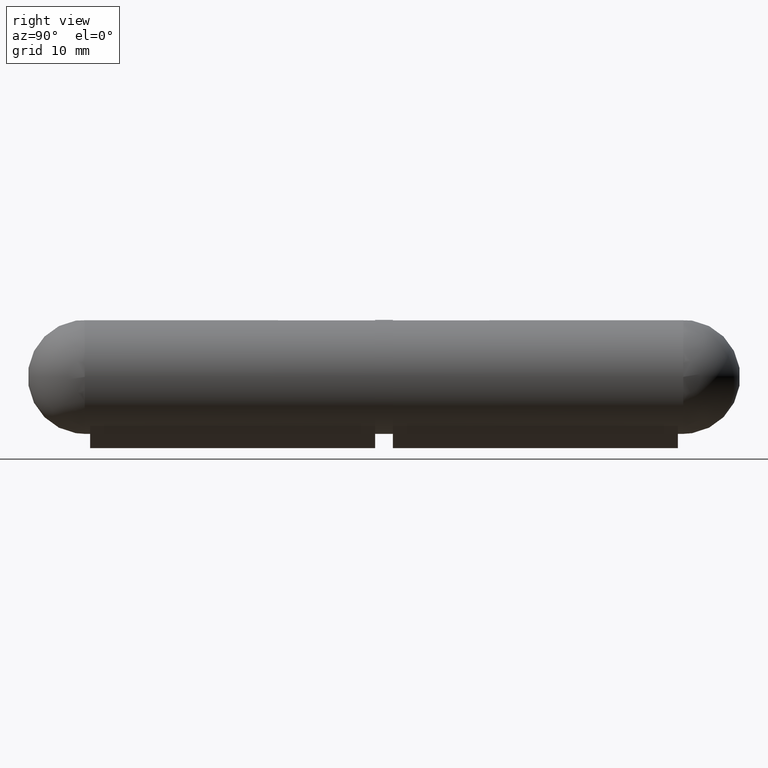
[diagram: clean part render]
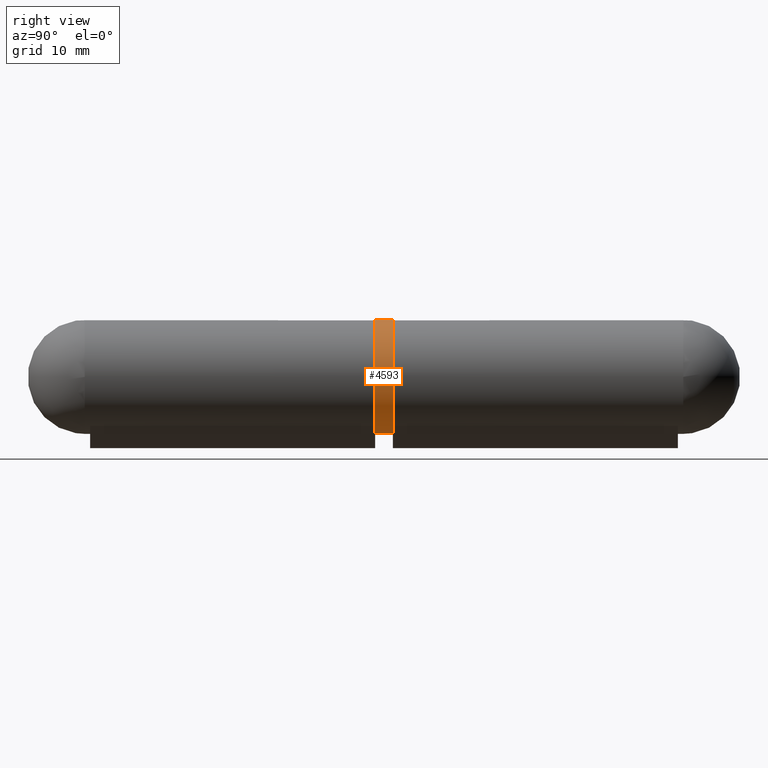
[diagram: same view with one face highlighted and labeled with its STEP entity id]
A machine part, right view. The second image highlights one B-rep face of the part: STEP entity #4593.
In plain terms, the highlighted cylindrical surface (bore or boss wall) has radius 8 mm, axis along (-0, -1, -0).
Its self-contained STEP definition (entity closure, byte-faithful):
#89 = AXIS2_PLACEMENT_3D ( 'NONE', #10456, #9517, #10412 ) ;
#658 = DIRECTION ( 'NONE',  ( 0.000000000000000000, 0.000000000000000000, -1.000000000000000000 ) ) ;
#1667 = ORIENTED_EDGE ( 'NONE', *, *, #4152, .T. ) ;
#1922 = VERTEX_POINT ( 'NONE', #2487 ) ;
#2487 = CARTESIAN_POINT ( 'NONE',  ( 0.000000000000000000, 2.500000000000000000, 8.000000000000000000 ) ) ;
#2810 = CARTESIAN_POINT ( 'NONE',  ( 0.000000000000000000, 0.000000000000000000, 0.000000000000000000 ) ) ;
#2877 = FACE_OUTER_BOUND ( 'NONE', #6918, .T. ) ;
#3813 = DIRECTION ( 'NONE',  ( 0.000000000000000000, 1.000000000000000000, 0.000000000000000000 ) ) ;
#4152 = EDGE_CURVE ( 'NONE', #8559, #8559, #10614, .T. ) ;
#4593 = ADVANCED_FACE ( 'NONE', ( #2877, #8727 ), #10601, .T. ) ;
#5330 = AXIS2_PLACEMENT_3D ( 'NONE', #2810, #3813, #6682 ) ;
#5456 = AXIS2_PLACEMENT_3D ( 'NONE', #12448, #5520, #658 ) ;
#5520 = DIRECTION ( 'NONE',  ( -0.000000000000000000, -1.000000000000000000, -0.000000000000000000 ) ) ;
#6201 = EDGE_CURVE ( 'NONE', #1922, #1922, #7046, .T. ) ;
#6682 = DIRECTION ( 'NONE',  ( 0.000000000000000000, 0.000000000000000000, 1.000000000000000000 ) ) ;
#6918 = EDGE_LOOP ( 'NONE', ( #9469 ) ) ;
#7046 = CIRCLE ( 'NONE', #89, 8.000000000000000000 ) ;
#8559 = VERTEX_POINT ( 'NONE', #11298 ) ;
#8727 = FACE_OUTER_BOUND ( 'NONE', #9343, .T. ) ;
#9343 = EDGE_LOOP ( 'NONE', ( #1667 ) ) ;
#9469 = ORIENTED_EDGE ( 'NONE', *, *, #6201, .F. ) ;
#9517 = DIRECTION ( 'NONE',  ( 0.000000000000000000, 1.000000000000000000, 0.000000000000000000 ) ) ;
#10412 = DIRECTION ( 'NONE',  ( 0.000000000000000000, 0.000000000000000000, 1.000000000000000000 ) ) ;
#10456 = CARTESIAN_POINT ( 'NONE',  ( 0.000000000000000000, 2.500000000000000000, 0.000000000000000000 ) ) ;
#10601 = CYLINDRICAL_SURFACE ( 'NONE', #5456, 8.000000000000000000 ) ;
#10614 = CIRCLE ( 'NONE', #5330, 8.000000000000000000 ) ;
#11298 = CARTESIAN_POINT ( 'NONE',  ( 0.000000000000000000, 0.000000000000000000, 8.000000000000000000 ) ) ;
#12448 = CARTESIAN_POINT ( 'NONE',  ( 0.000000000000000000, 2.500000000000000000, 0.000000000000000000 ) ) ;